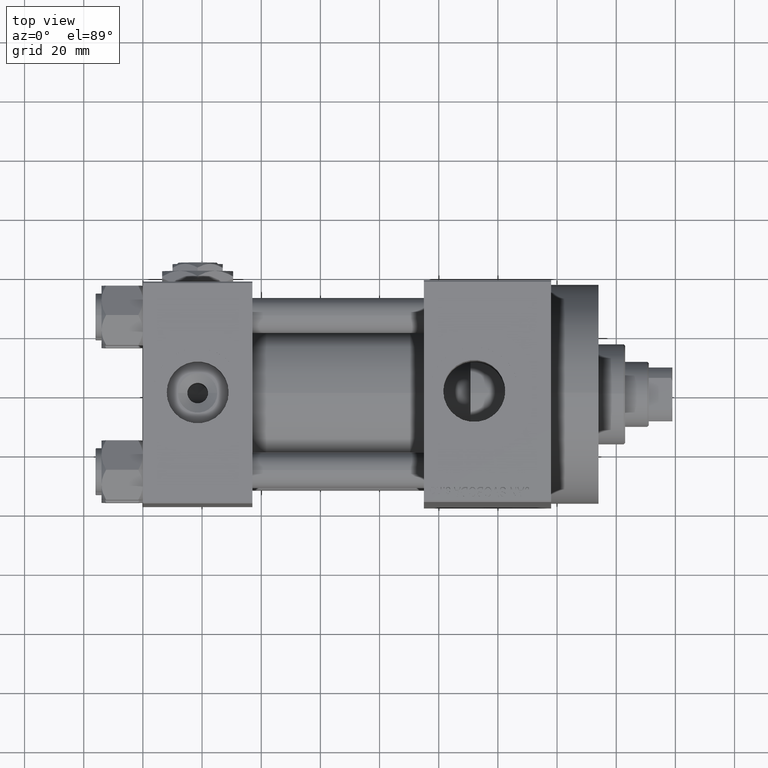
[diagram: clean part render]
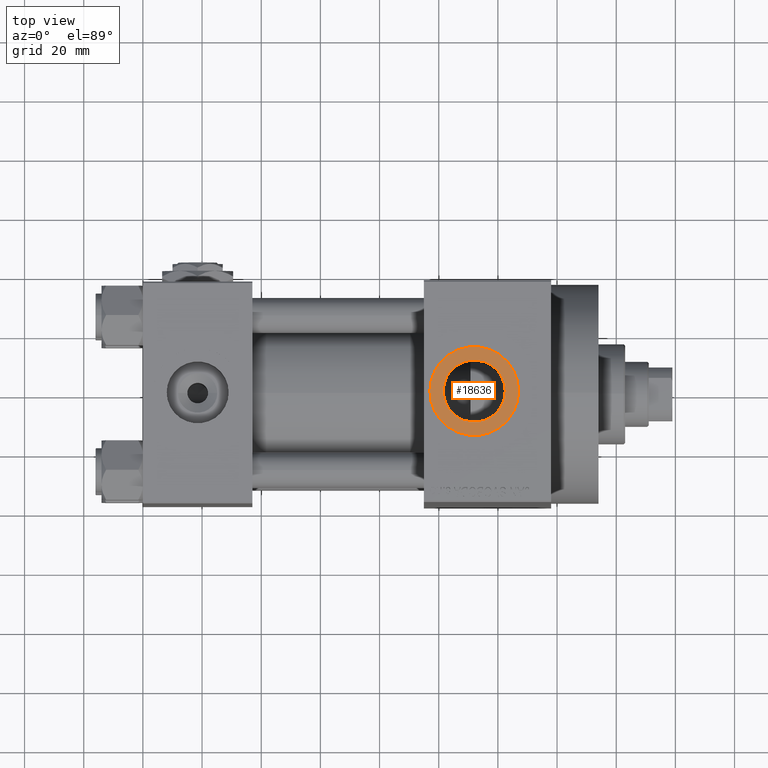
[diagram: same view with one face highlighted and labeled with its STEP entity id]
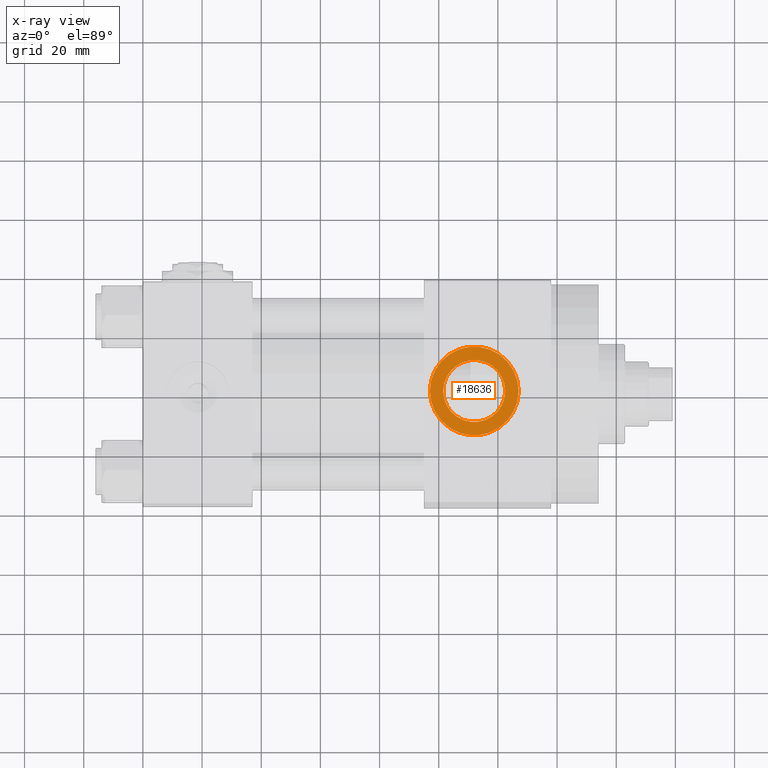
[diagram: x-ray of the same camera — body ghosted, the highlighted face saturated]
A machine part, top view. The second image highlights one B-rep face of the part: STEP entity #18636.
The next image is the same camera in x-ray: the body ghosted, the highlighted face saturated — about 0% of this face is hidden behind the body in this view.
In plain terms, the highlighted planar face has unit normal (0, 0, 1).
Its self-contained STEP definition (entity closure, byte-faithful):
#1524 = DIRECTION ( 'NONE',  ( 0.000000000000000000, 0.000000000000000000, 1.000000000000000000 ) ) ;
#2311 = VERTEX_POINT ( 'NONE', #20521 ) ;
#2800 = CARTESIAN_POINT ( 'NONE',  ( 101.5199999999999960, -1.184237892933500047E-14, 63.79999999999996874 ) ) ;
#2943 = AXIS2_PLACEMENT_3D ( 'NONE', #5014, #24076, #23824 ) ;
#3938 = ORIENTED_EDGE ( 'NONE', *, *, #34007, .T. ) ;
#5014 = CARTESIAN_POINT ( 'NONE',  ( 112.0000000000000000, -1.184237892933500047E-14, 63.79999999999996874 ) ) ;
#5096 = CARTESIAN_POINT ( 'NONE',  ( 122.4800000000000040, -1.055894908382857498E-14, 63.79999999999996874 ) ) ;
#6890 = AXIS2_PLACEMENT_3D ( 'NONE', #12403, #1524, #12167 ) ;
#9261 = EDGE_CURVE ( 'NONE', #47543, #21063, #10858, .T. ) ;
#10858 = CIRCLE ( 'NONE', #2943, 10.48000000000000398 ) ;
#11444 = CARTESIAN_POINT ( 'NONE',  ( 112.0000000000000000, -1.184237892933500047E-14, 63.79999999999996874 ) ) ;
#12167 = DIRECTION ( 'NONE',  ( 1.000000000000000000, 0.000000000000000000, 0.000000000000000000 ) ) ;
#12177 = DIRECTION ( 'NONE',  ( 0.000000000000000000, 0.000000000000000000, 1.000000000000000000 ) ) ;
#12403 = CARTESIAN_POINT ( 'NONE',  ( 112.0000000000000000, -1.184237892933500047E-14, 63.79999999999996874 ) ) ;
#13792 = VERTEX_POINT ( 'NONE', #47120 ) ;
#14792 = CIRCLE ( 'NONE', #6890, 15.00000000000000000 ) ;
#14834 = EDGE_CURVE ( 'NONE', #13792, #2311, #14792, .T. ) ;
#16637 = DIRECTION ( 'NONE',  ( 1.000000000000000000, 0.000000000000000000, 0.000000000000000000 ) ) ;
#17246 = FACE_BOUND ( 'NONE', #45947, .T. ) ;
#18636 = ADVANCED_FACE ( 'NONE', ( #17246, #47210 ), #31362, .T. ) ;
#18895 = CIRCLE ( 'NONE', #19667, 15.00000000000000000 ) ;
#19136 = EDGE_CURVE ( 'NONE', #2311, #13792, #18895, .T. ) ;
#19667 = AXIS2_PLACEMENT_3D ( 'NONE', #11444, #12177, #16637 ) ;
#20521 = CARTESIAN_POINT ( 'NONE',  ( 96.99999999999998579, -1.000540873061397009E-14, 63.79999999999996874 ) ) ;
#21063 = VERTEX_POINT ( 'NONE', #5096 ) ;
#23824 = DIRECTION ( 'NONE',  ( 1.000000000000000000, 0.000000000000000000, 0.000000000000000000 ) ) ;
#24076 = DIRECTION ( 'NONE',  ( -0.000000000000000000, -0.000000000000000000, -1.000000000000000000 ) ) ;
#28387 = DIRECTION ( 'NONE',  ( 1.000000000000000000, 0.000000000000000000, -0.000000000000000000 ) ) ;
#29380 = ORIENTED_EDGE ( 'NONE', *, *, #19136, .T. ) ;
#31362 = PLANE ( 'NONE',  #41791 ) ;
#31863 = DIRECTION ( 'NONE',  ( 0.000000000000000000, 0.000000000000000000, 1.000000000000000000 ) ) ;
#33374 = AXIS2_PLACEMENT_3D ( 'NONE', #42987, #43482, #38779 ) ;
#34007 = EDGE_CURVE ( 'NONE', #21063, #47543, #34957, .T. ) ;
#34957 = CIRCLE ( 'NONE', #33374, 10.48000000000000398 ) ;
#36634 = ORIENTED_EDGE ( 'NONE', *, *, #14834, .T. ) ;
#38779 = DIRECTION ( 'NONE',  ( 1.000000000000000000, 0.000000000000000000, 0.000000000000000000 ) ) ;
#41241 = EDGE_LOOP ( 'NONE', ( #36634, #29380 ) ) ;
#41791 = AXIS2_PLACEMENT_3D ( 'NONE', #43728, #31863, #28387 ) ;
#42987 = CARTESIAN_POINT ( 'NONE',  ( 112.0000000000000000, -1.184237892933500047E-14, 63.79999999999996874 ) ) ;
#43482 = DIRECTION ( 'NONE',  ( -0.000000000000000000, -0.000000000000000000, -1.000000000000000000 ) ) ;
#43728 = CARTESIAN_POINT ( 'NONE',  ( 112.0000000000000000, -1.184237892933500047E-14, 63.79999999999996874 ) ) ;
#44844 = ORIENTED_EDGE ( 'NONE', *, *, #9261, .T. ) ;
#45947 = EDGE_LOOP ( 'NONE', ( #44844, #3938 ) ) ;
#47120 = CARTESIAN_POINT ( 'NONE',  ( 127.0000000000000000, -1.184237892933500047E-14, 63.79999999999996874 ) ) ;
#47210 = FACE_OUTER_BOUND ( 'NONE', #41241, .T. ) ;
#47543 = VERTEX_POINT ( 'NONE', #2800 ) ;